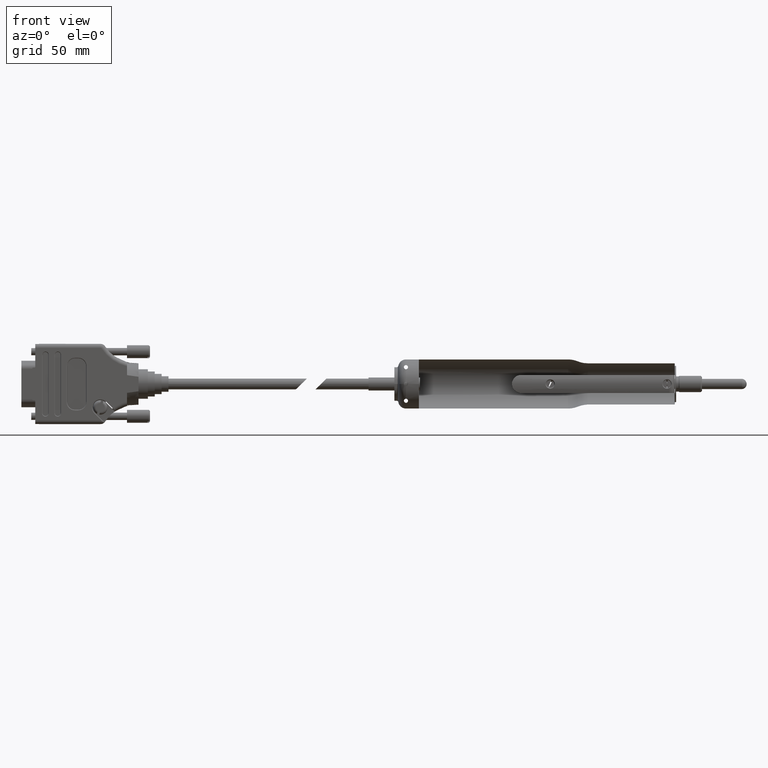
[diagram: clean part render]
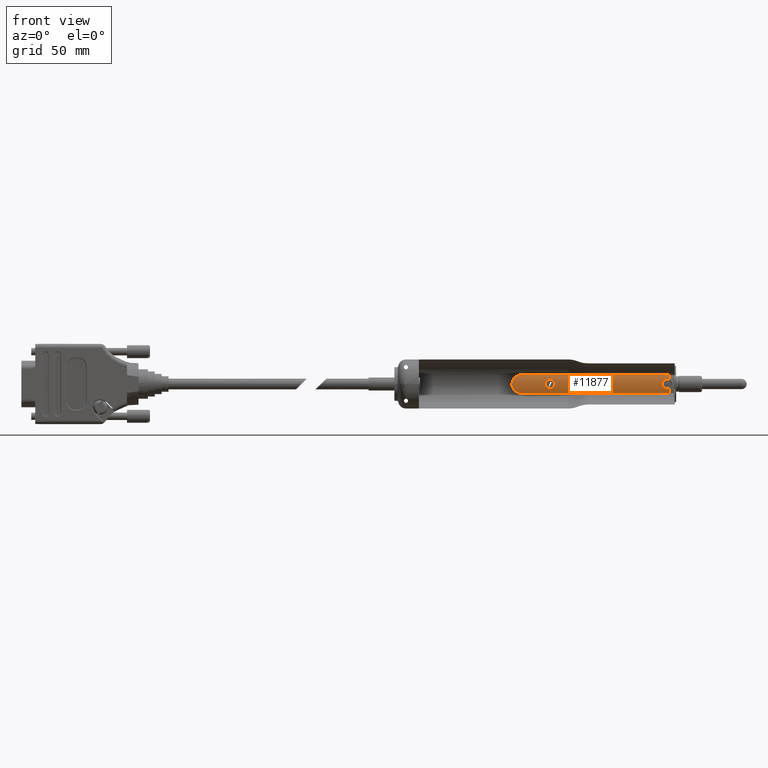
[diagram: same view with one face highlighted and labeled with its STEP entity id]
A machine part, front view. The second image highlights one B-rep face of the part: STEP entity #11877.
In plain terms, the highlighted cylindrical surface (edge-blend (fillet) strip) has radius 9.5 mm, axis along (-1, -0, 0).
Its self-contained STEP definition (entity closure, byte-faithful):
#390 = FACE_BOUND ( 'NONE', #24473, .T. ) ;
#391 = FACE_OUTER_BOUND ( 'NONE', #24388, .T. ) ;
#399 = CYLINDRICAL_SURFACE ( 'NONE', #20794, 9.499999999999998200 ) ;
#542 = DIRECTION ( 'NONE',  ( -1.000000000000000000, -2.479409886018499400E-017, 8.326672684688674100E-017 ) ) ;
#613 = CARTESIAN_POINT ( 'NONE',  ( 96.00000000000000000, -9.327915093953198100, 1.799999999999999600 ) ) ;
#614 = CARTESIAN_POINT ( 'NONE',  ( 98.90000000000000600, -8.831760866327844200, 3.499999999999998200 ) ) ;
#620 = CARTESIAN_POINT ( 'NONE',  ( 94.25777628001557700, -9.489195347442994000, 0.4675899155826124800 ) ) ;
#623 = CARTESIAN_POINT ( 'NONE',  ( 95.76336212461757200, -9.330196855826731200, -1.788290299225192800 ) ) ;
#648 = CARTESIAN_POINT ( 'NONE',  ( 94.42771935973453900, -9.459075492453406400, -0.9077220823629803500 ) ) ;
#652 = CARTESIAN_POINT ( 'NONE',  ( 94.55991262463639700, -9.436969996646897800, -1.105475336838141800 ) ) ;
#653 = CARTESIAN_POINT ( 'NONE',  ( 94.90132107680119600, -9.391895889595762300, -1.430613095032818000 ) ) ;
#654 = CARTESIAN_POINT ( 'NONE',  ( 94.81073153834213900, -9.403057866520180500, -1.356326792615170300 ) ) ;
#656 = CARTESIAN_POINT ( 'NONE',  ( 94.25776076049869800, -9.489198430881570400, -0.4673674577579803300 ) ) ;
#659 = CARTESIAN_POINT ( 'NONE',  ( 94.29180476338467500, -9.482928959790852400, -0.5797201749511992100 ) ) ;
#664 = CARTESIAN_POINT ( 'NONE',  ( 95.09620695102792400, -9.371096782132529100, -1.561059681303210500 ) ) ;
#665 = CARTESIAN_POINT ( 'NONE',  ( 95.20172241097610300, -9.361382930355141200, -1.617592974727468000 ) ) ;
#667 = CARTESIAN_POINT ( 'NONE',  ( 94.29261095051603500, -9.482785226953042800, 0.5818824647597480300 ) ) ;
#671 = CARTESIAN_POINT ( 'NONE',  ( 96.00000000000000000, -9.327915093953199800, -1.799999999999999600 ) ) ;
#672 = CARTESIAN_POINT ( 'NONE',  ( 95.88246081660692300, -9.327915093953196300, -1.800000000000000700 ) ) ;
#682 = CARTESIAN_POINT ( 'NONE',  ( 95.20133812524402100, -9.361415360610358500, 1.617406421301167200 ) ) ;
#683 = CARTESIAN_POINT ( 'NONE',  ( 95.09807643121921200, -9.370912744068800000, 1.562168944255248900 ) ) ;
#685 = CARTESIAN_POINT ( 'NONE',  ( 94.81015010270812100, -9.403138293407225800, 1.355717955792291200 ) ) ;
#689 = CARTESIAN_POINT ( 'NONE',  ( 94.90243246736160600, -9.391762029658268700, 1.431496924766462200 ) ) ;
#690 = CARTESIAN_POINT ( 'NONE',  ( 94.20005158253825100, -9.499990226467330600, 0.1186942081878848700 ) ) ;
#691 = CARTESIAN_POINT ( 'NONE',  ( 95.76412334852277300, -9.330185880016614400, 1.788344476754133900 ) ) ;
#693 = CARTESIAN_POINT ( 'NONE',  ( 95.88115236608044300, -9.327915093953201600, 1.799999999999999800 ) ) ;
#705 = CARTESIAN_POINT ( 'NONE',  ( 94.21157674744233600, -9.497786193726744500, 0.2356397448267032200 ) ) ;
#706 = CARTESIAN_POINT ( 'NONE',  ( 94.21176089759440200, -9.497751753986808200, -0.2367083033121867900 ) ) ;
#707 = CARTESIAN_POINT ( 'NONE',  ( 94.56170468957928700, -9.436724079223790100, 1.107322182110598300 ) ) ;
#708 = CARTESIAN_POINT ( 'NONE',  ( 94.19994875967377400, -9.500009708692497100, -0.1171245182717037800 ) ) ;
#709 = CARTESIAN_POINT ( 'NONE',  ( 94.42757803402705000, -9.459104821068381200, 0.9069440100116930000 ) ) ;
#723 = CARTESIAN_POINT ( 'NONE',  ( 95.41884752640328300, -9.345371847136448200, 1.707666865722753400 ) ) ;
#737 = CARTESIAN_POINT ( 'NONE',  ( 95.53147167475489700, -9.338955759396791100, -1.741970403540614500 ) ) ;
#744 = CARTESIAN_POINT ( 'NONE',  ( 95.53357579495437300, -9.338858725775956800, 1.742487366725135700 ) ) ;
#754 = CARTESIAN_POINT ( 'NONE',  ( 95.41917114025409300, -9.345352075974481900, -1.707773982912178700 ) ) ;
#1795 = B_SPLINE_CURVE_WITH_KNOTS ( 'NONE', 3,
 ( #671, #672, #623, #737, #754, #665, #664, #653, #654, #652, #648, #659, #656, #706, #708, #690, #705, #620, #667, #709, #707, #685, #689, #683, #682, #723, #744, #691, #693, #613 ),
 .UNSPECIFIED., .F., .F.,
 ( 4, 2, 2, 2, 2, 2, 2, 2, 2, 2, 2, 2, 2, 2, 4 ),
 ( 0.0009395609290142590600, 0.001292166057146616800, 0.001644771185278974400, 0.001997376313411332000, 0.002349981441543689800, 0.003055191697808404900, 0.003407796825940770500, 0.003760401954073135600, 0.004113007082205501200, 0.004465612210337865900, 0.005170822466602597100, 0.005523427594734963600, 0.005876032722867328300, 0.006228637850999694700, 0.006581242979132059500 ),
 .UNSPECIFIED. ) ;
#2343 = AXIS2_PLACEMENT_3D ( 'NONE', #25992, #25993, #25994 ) ;
#2344 = AXIS2_PLACEMENT_3D ( 'NONE', #26006, #26007, #26008 ) ;
#3759 = CIRCLE ( 'NONE', #2344, 9.499999999999998200 ) ;
#3761 = CIRCLE ( 'NONE', #2343, 9.499999999999998200 ) ;
#3823 = LINE ( 'NONE', #26183, #3830 ) ;
#3830 = VECTOR ( 'NONE', #26185, 1000.000000000000000 ) ;
#5535 = ORIENTED_EDGE ( 'NONE', *, *, #19786, .T. ) ;
#5551 = ORIENTED_EDGE ( 'NONE', *, *, #19789, .T. ) ;
#5606 = ORIENTED_EDGE ( 'NONE', *, *, #19784, .T. ) ;
#5623 = ORIENTED_EDGE ( 'NONE', *, *, #19827, .F. ) ;
#5667 = ORIENTED_EDGE ( 'NONE', *, *, #19787, .T. ) ;
#5708 = ORIENTED_EDGE ( 'NONE', *, *, #19788, .T. ) ;
#5733 = ORIENTED_EDGE ( 'NONE', *, *, #19816, .T. ) ;
#5781 = ORIENTED_EDGE ( 'NONE', *, *, #9779, .T. ) ;
#5809 = ORIENTED_EDGE ( 'NONE', *, *, #9776, .T. ) ;
#5812 = ORIENTED_EDGE ( 'NONE', *, *, #19785, .T. ) ;
#9776 = EDGE_CURVE ( 'NONE', #27043, #27029, #21256, .T. ) ;
#9779 = EDGE_CURVE ( 'NONE', #26694, #26693, #1795, .T. ) ;
#11877 = ADVANCED_FACE ( 'NONE', ( #390, #391 ), #399, .T. ) ;
#18878 = CARTESIAN_POINT ( 'NONE',  ( 96.00000000000000000, -9.327915093953198100, 1.799999999999999600 ) ) ;
#18879 = CARTESIAN_POINT ( 'NONE',  ( 96.00000000000000000, -9.327915093953199800, -1.799999999999999600 ) ) ;
#19214 = CARTESIAN_POINT ( 'NONE',  ( 39.50000000000000700, -8.831760866327846000, 3.500000000000003100 ) ) ;
#19216 = CARTESIAN_POINT ( 'NONE',  ( 50.79999999999999700, -9.327915093953201600, -1.799999999999995600 ) ) ;
#19217 = CARTESIAN_POINT ( 'NONE',  ( 50.79999999999999700, -9.327915093953201600, 1.800000000000003200 ) ) ;
#19222 = CARTESIAN_POINT ( 'NONE',  ( 96.89999999999732000, -9.371232576348083000, 1.558845726814393600 ) ) ;
#19223 = CARTESIAN_POINT ( 'NONE',  ( 96.90000000000000600, -8.831760866327844200, -3.500000000000002200 ) ) ;
#19225 = CARTESIAN_POINT ( 'NONE',  ( 39.50000000000000700, -8.831760866327846000, -3.499999999999997300 ) ) ;
#19228 = CARTESIAN_POINT ( 'NONE',  ( 96.90000000000000600, -8.831760866327844200, 3.499999999999998200 ) ) ;
#19230 = CARTESIAN_POINT ( 'NONE',  ( 96.90000000000000600, -9.371232576347678000, -1.558845726811990000 ) ) ;
#19784 = EDGE_CURVE ( 'NONE', #27029, #27040, #20288, .T. ) ;
#19785 = EDGE_CURVE ( 'NONE', #27037, #27043, #3761, .T. ) ;
#19786 = EDGE_CURVE ( 'NONE', #26693, #27037, #20289, .T. ) ;
#19787 = EDGE_CURVE ( 'NONE', #27045, #26694, #20290, .T. ) ;
#19788 = EDGE_CURVE ( 'NONE', #27038, #27045, #3759, .T. ) ;
#19789 = EDGE_CURVE ( 'NONE', #27032, #27031, #20291, .T. ) ;
#19816 = EDGE_CURVE ( 'NONE', #27031, #27032, #20297, .T. ) ;
#19827 = EDGE_CURVE ( 'NONE', #27038, #27040, #3823, .T. ) ;
#20288 = B_SPLINE_CURVE_WITH_KNOTS ( 'NONE', 3,
 ( #25961, #25936, #25935, #25963, #25964, #25965, #25966, #25967, #25968, #25969, #25970, #25971, #25972, #25973, #25974, #25975, #25976, #25977, #25978, #25979, #25980, #25981, #25982, #25983, #25984, #25985, #25986, #25987, #25988, #25989 ),
 .UNSPECIFIED., .F., .F.,
 ( 4, 2, 2, 2, 2, 2, 2, 2, 2, 2, 2, 2, 2, 2, 4 ),
 ( 0.0000000000000000000, 0.0006895794441545122700, 0.001379158888309024500, 0.002068738332463537300, 0.002758317776618049100, 0.004137476664927057200, 0.004827056109081565500, 0.005516635553236073000, 0.006206214997390579700, 0.006895794441545087200, 0.007585373885699594700, 0.008274953329854102200, 0.009654112218163118900, 0.01034369166231762600, 0.01103327110647213600 ),
 .UNSPECIFIED. ) ;
#20289 = B_SPLINE_CURVE_WITH_KNOTS ( 'NONE', 3,
 ( #25990, #25991, #25996, #25997, #25998, #25999 ),
 .UNSPECIFIED., .F., .F.,
 ( 4, 2, 4 ),
 ( 0.006581242979132060300, 0.007049676816807058100, 0.007518110654482055900 ),
 .UNSPECIFIED. ) ;
#20290 = B_SPLINE_CURVE_WITH_KNOTS ( 'NONE', 3,
 ( #25962, #25995, #26000, #26001, #26002, #26003 ),
 .UNSPECIFIED., .F., .F.,
 ( 4, 2, 4 ),
 ( 0.0000000000000000000, 0.0004697804645071295300, 0.0009395609290142590600 ),
 .UNSPECIFIED. ) ;
#20291 = B_SPLINE_CURVE_WITH_KNOTS ( 'NONE', 3,
 ( #26009, #26004, #26005, #26010, #26011, #26012, #26013, #26014, #26015, #26016, #26017, #26018, #26019, #26020, #26021, #26022, #26023, #26024, #26025, #26026, #26027, #26028, #26029, #26030, #26031, #26032 ),
 .UNSPECIFIED., .F., .F.,
 ( 4, 2, 2, 2, 2, 2, 2, 2, 2, 2, 2, 2, 4 ),
 ( 0.005640370647349828700, 0.006345236228277349000, 0.006697669018741098800, 0.007050101809204849400, 0.007402534599668600000, 0.007754967390132349800, 0.008459832971059851000, 0.008812265761523600800, 0.009164698551987352300, 0.009517131342451102100, 0.009869564132914851800, 0.01057442971384235300, 0.01127929529476985300 ),
 .UNSPECIFIED. ) ;
#20297 = B_SPLINE_CURVE_WITH_KNOTS ( 'NONE', 3,
 ( #26123, #26124, #26128, #26129, #26130, #26131, #26132, #26133, #26134, #26135, #26136, #26137, #26138, #26139, #26140, #26141, #26142, #26143, #26144, #26145, #26146, #26147, #26148, #26149, #26150, #26151, #26152, #26153 ),
 .UNSPECIFIED., .F., .F.,
 ( 4, 2, 2, 2, 2, 2, 2, 2, 2, 2, 2, 2, 2, 4 ),
 ( 0.0000000000000000000, 0.0003525231654593664100, 0.0007050463309187328200, 0.001057569496378099200, 0.001410092661837465600, 0.002115138992756184000, 0.002820185323674902600, 0.003172708489134262000, 0.003525231654593621700, 0.004230277985512348100, 0.004582801150971718700, 0.004935324316431088400, 0.005287847481890459000, 0.005640370647349828700 ),
 .UNSPECIFIED. ) ;
#20794 = AXIS2_PLACEMENT_3D ( 'NONE', #27727, #27818, #27740 ) ;
#21256 = LINE ( 'NONE', #614, #21260 ) ;
#21260 = VECTOR ( 'NONE', #542, 1000.000000000000000 ) ;
#24388 = EDGE_LOOP ( 'NONE', ( #5708, #5667, #5781, #5535, #5812, #5809, #5606, #5623 ) ) ;
#24473 = EDGE_LOOP ( 'NONE', ( #5733, #5551 ) ) ;
#25935 = CARTESIAN_POINT ( 'NONE',  ( 39.03765339804239400, -8.841011713849013600, 3.476901595183036900 ) ) ;
#25936 = CARTESIAN_POINT ( 'NONE',  ( 39.26665098350100900, -8.831760866327844200, 3.500000000000002700 ) ) ;
#25961 = CARTESIAN_POINT ( 'NONE',  ( 39.50000000000000700, -8.831760866327846000, 3.500000000000003100 ) ) ;
#25962 = CARTESIAN_POINT ( 'NONE',  ( 96.90000000000000600, -9.371232576347678000, -1.558845726811990000 ) ) ;
#25963 = CARTESIAN_POINT ( 'NONE',  ( 38.58785036768006900, -8.875907880088384200, 3.386826262326825700 ) ) ;
#25964 = CARTESIAN_POINT ( 'NONE',  ( 38.36467319750610700, -8.901985774902929200, 3.318646915421718200 ) ) ;
#25965 = CARTESIAN_POINT ( 'NONE',  ( 37.94215610882369600, -8.965671273105464000, 3.142531894575413300 ) ) ;
#25966 = CARTESIAN_POINT ( 'NONE',  ( 37.74208600018380400, -9.003114732358900700, 3.035071310054879400 ) ) ;
#25967 = CARTESIAN_POINT ( 'NONE',  ( 37.36341117565851300, -9.084647767391373900, 2.781529738033926300 ) ) ;
#25968 = CARTESIAN_POINT ( 'NONE',  ( 37.18591006525179700, -9.128598628870483000, 2.635539410933354500 ) ) ;
#25969 = CARTESIAN_POINT ( 'NONE',  ( 36.70629524985412900, -9.257968947595376400, 2.156277955124482800 ) ) ;
#25970 = CARTESIAN_POINT ( 'NONE',  ( 36.44618060864505800, -9.343373109102044400, 1.769623293722354800 ) ) ;
#25971 = CARTESIAN_POINT ( 'NONE',  ( 36.18281415326044500, -9.433818102286483800, 1.139351976943827600 ) ) ;
#25972 = CARTESIAN_POINT ( 'NONE',  ( 36.11437666699118400, -9.458363278201790800, 0.9171139687531848500 ) ) ;
#25973 = CARTESIAN_POINT ( 'NONE',  ( 36.02310621081198900, -9.491416173085891500, 0.4634144617961528100 ) ) ;
#25974 = CARTESIAN_POINT ( 'NONE',  ( 36.00000305828079000, -9.499998873264972900, 0.2333751346289033600 ) ) ;
#25975 = CARTESIAN_POINT ( 'NONE',  ( 35.99999694232038600, -9.500001126513536700, -0.2332833936232332200 ) ) ;
#25976 = CARTESIAN_POINT ( 'NONE',  ( 36.02308985681156600, -9.491424555169135900, -0.4623276769402969700 ) ) ;
#25977 = CARTESIAN_POINT ( 'NONE',  ( 36.11321023890708700, -9.458783263639389800, -0.9123081380914936900 ) ) ;
#25978 = CARTESIAN_POINT ( 'NONE',  ( 36.18144282025920000, -9.434297258983143300, -1.135632417857517700 ) ) ;
#25979 = CARTESIAN_POINT ( 'NONE',  ( 36.35778747986017800, -9.373720848060870000, -1.558519560985598200 ) ) ;
#25980 = CARTESIAN_POINT ( 'NONE',  ( 36.46539999403482600, -9.337787056252418300, -1.758745154209962800 ) ) ;
#25981 = CARTESIAN_POINT ( 'NONE',  ( 36.71921137402742400, -9.258415377052914500, -2.137567854203093800 ) ) ;
#25982 = CARTESIAN_POINT ( 'NONE',  ( 36.86540720182782100, -9.215063194638020100, -2.315170589696931500 ) ) ;
#25983 = CARTESIAN_POINT ( 'NONE',  ( 37.34493429322489500, -9.085678294793643400, -2.794649903976439200 ) ) ;
#25984 = CARTESIAN_POINT ( 'NONE',  ( 37.73125765911629500, -8.997566660265235300, -3.054269203055509900 ) ) ;
#25985 = CARTESIAN_POINT ( 'NONE',  ( 38.36101062494493200, -8.902484814974904700, -3.317296438638501800 ) ) ;
#25986 = CARTESIAN_POINT ( 'NONE',  ( 38.58306257357259000, -8.876353624351613900, -3.385666732221646000 ) ) ;
#25987 = CARTESIAN_POINT ( 'NONE',  ( 39.03663835272038100, -8.841017104198272100, -3.476896525565008800 ) ) ;
#25988 = CARTESIAN_POINT ( 'NONE',  ( 39.26664983246975300, -8.831760866327842400, -3.499999999999998200 ) ) ;
#25989 = CARTESIAN_POINT ( 'NONE',  ( 39.50000000000000700, -8.831760866327846000, -3.499999999999997300 ) ) ;
#25990 = CARTESIAN_POINT ( 'NONE',  ( 96.00000000000000000, -9.327915093953198100, 1.799999999999999600 ) ) ;
#25991 = CARTESIAN_POINT ( 'NONE',  ( 96.15788838225478200, -9.327915093953199800, 1.799999999999999600 ) ) ;
#25992 = CARTESIAN_POINT ( 'NONE',  ( 96.90000000000000600, 1.943508672927152100E-015, -2.968481539827414000E-015 ) ) ;
#25993 = DIRECTION ( 'NONE',  ( -1.000000000000000000, -2.479409886018499400E-017, 8.326672684688674100E-017 ) ) ;
#25994 = DIRECTION ( 'NONE',  ( 0.0000000000000000000, -1.062751620959548200E-014, 1.000000000000000000 ) ) ;
#25995 = CARTESIAN_POINT ( 'NONE',  ( 96.76293324340058200, -9.358068877769667900, -1.637981255631595400 ) ) ;
#25996 = CARTESIAN_POINT ( 'NONE',  ( 96.31378887993699300, -9.331970992894286000, 1.779327502942581200 ) ) ;
#25997 = CARTESIAN_POINT ( 'NONE',  ( 96.61603009931845100, -9.347016220929251800, 1.698521928216908600 ) ) ;
#25998 = CARTESIAN_POINT ( 'NONE',  ( 96.76331403292456900, -9.358105448260131400, 1.637761406697436200 ) ) ;
#25999 = CARTESIAN_POINT ( 'NONE',  ( 96.89999999999732000, -9.371232576348083000, 1.558845726814393600 ) ) ;
#26000 = CARTESIAN_POINT ( 'NONE',  ( 96.61847529778758300, -9.347167490126169700, -1.697697644581642100 ) ) ;
#26001 = CARTESIAN_POINT ( 'NONE',  ( 96.31496836313628800, -9.332000507087155200, -1.779180686893462300 ) ) ;
#26002 = CARTESIAN_POINT ( 'NONE',  ( 96.15659900485476900, -9.327915093953199800, -1.799999999999998500 ) ) ;
#26003 = CARTESIAN_POINT ( 'NONE',  ( 96.00000000000000000, -9.327915093953199800, -1.799999999999999600 ) ) ;
#26004 = CARTESIAN_POINT ( 'NONE',  ( 51.03518078670988700, -9.327915093953203400, 1.800000000000003200 ) ) ;
#26005 = CARTESIAN_POINT ( 'NONE',  ( 51.27251335384084300, -9.337375335444569700, 1.752638289454061700 ) ) ;
#26006 = CARTESIAN_POINT ( 'NONE',  ( 96.90000000000000600, 1.943508672927152100E-015, -2.968481539827414000E-015 ) ) ;
#26007 = DIRECTION ( 'NONE',  ( -1.000000000000000000, -2.479409886018499400E-017, 8.326672684688674100E-017 ) ) ;
#26008 = DIRECTION ( 'NONE',  ( 0.0000000000000000000, 3.062482680602242000E-017, 1.000000000000000000 ) ) ;
#26009 = CARTESIAN_POINT ( 'NONE',  ( 50.79999999999999700, -9.327915093953201600, 1.800000000000003200 ) ) ;
#26010 = CARTESIAN_POINT ( 'NONE',  ( 51.59751732348001200, -9.361322620367449300, 1.617936519012383800 ) ) ;
#26011 = CARTESIAN_POINT ( 'NONE',  ( 51.70256371884371300, -9.370972459859455500, 1.561819382444528800 ) ) ;
#26012 = CARTESIAN_POINT ( 'NONE',  ( 51.89858096135458300, -9.391878603640602600, 1.430741388686874300 ) ) ;
#26013 = CARTESIAN_POINT ( 'NONE',  ( 51.98900871786680300, -9.403030241182483100, 1.356473747373923000 ) ) ;
#26014 = CARTESIAN_POINT ( 'NONE',  ( 52.15501831595508300, -9.425460764440263300, 1.190667091131767600 ) ) ;
#26015 = CARTESIAN_POINT ( 'NONE',  ( 52.23092165556599300, -9.436810538958001300, 1.098276578352096700 ) ) ;
#26016 = CARTESIAN_POINT ( 'NONE',  ( 52.36130927172072800, -9.457459648646786100, 0.9033612704579615500 ) ) ;
#26017 = CARTESIAN_POINT ( 'NONE',  ( 52.41670635365427700, -9.466876124798636400, 0.8001462392977051200 ) ) ;
#26018 = CARTESIAN_POINT ( 'NONE',  ( 52.55284289167347800, -9.490757331016077100, 0.4726896973098559400 ) ) ;
#26019 = CARTESIAN_POINT ( 'NONE',  ( 52.59987328702987200, -9.499975991229977300, 0.2386840410481780300 ) ) ;
#26020 = CARTESIAN_POINT ( 'NONE',  ( 52.60006297447657200, -9.500011932004451200, -0.1179057594957073200 ) ) ;
#26021 = CARTESIAN_POINT ( 'NONE',  ( 52.58846664759565200, -9.497794894289707900, -0.2349565606509747800 ) ) ;
#26022 = CARTESIAN_POINT ( 'NONE',  ( 52.54271987955304000, -9.489286984964836700, -0.4655587571569998500 ) ) ;
#26023 = CARTESIAN_POINT ( 'NONE',  ( 52.50796169394715200, -9.482887992656175800, -0.5802818083106420200 ) ) ;
#26024 = CARTESIAN_POINT ( 'NONE',  ( 52.41782789262953900, -9.467069167564053700, -0.7978051359053370800 ) ) ;
#26025 = CARTESIAN_POINT ( 'NONE',  ( 52.36262598573493700, -9.457675974712072900, -0.9011479433571005800 ) ) ;
#26026 = CARTESIAN_POINT ( 'NONE',  ( 52.23189814203014700, -9.436957516090732400, -1.097057563649856100 ) ) ;
#26027 = CARTESIAN_POINT ( 'NONE',  ( 52.15628529566818400, -9.425645678908026100, -1.189194832239087300 ) ) ;
#26028 = CARTESIAN_POINT ( 'NONE',  ( 51.90819983663782000, -9.392084620690518200, -1.437591642698026600 ) ) ;
#26029 = CARTESIAN_POINT ( 'NONE',  ( 51.70792237180703000, -9.369511080683741600, -1.571823099332664300 ) ) ;
#26030 = CARTESIAN_POINT ( 'NONE',  ( 51.27506603887783900, -9.337510514003334100, -1.751931262215615800 ) ) ;
#26031 = CARTESIAN_POINT ( 'NONE',  ( 51.03838124241208600, -9.327915093953203400, -1.799999999999995800 ) ) ;
#26032 = CARTESIAN_POINT ( 'NONE',  ( 50.79999999999999700, -9.327915093953201600, -1.799999999999995600 ) ) ;
#26123 = CARTESIAN_POINT ( 'NONE',  ( 50.79999999999999700, -9.327915093953201600, -1.799999999999995600 ) ) ;
#26124 = CARTESIAN_POINT ( 'NONE',  ( 50.68077881452139600, -9.327915093953199800, -1.799999999999995600 ) ) ;
#26128 = CARTESIAN_POINT ( 'NONE',  ( 50.56360534728371200, -9.330199678608094500, -1.788272754264153000 ) ) ;
#26129 = CARTESIAN_POINT ( 'NONE',  ( 50.33316902206748700, -9.338879738642267700, -1.742375020917980500 ) ) ;
#26130 = CARTESIAN_POINT ( 'NONE',  ( 50.21869280338942300, -9.345379421221846200, -1.707628114389846200 ) ) ;
#26131 = CARTESIAN_POINT ( 'NONE',  ( 50.00082908064340600, -9.361456757797416400, -1.617169649585532800 ) ) ;
#26132 = CARTESIAN_POINT ( 'NONE',  ( 49.89754266522793800, -9.370965029245807500, -1.561854593258839900 ) ) ;
#26133 = CARTESIAN_POINT ( 'NONE',  ( 49.70207155256152000, -9.391805109453589000, -1.431213518617323600 ) ) ;
#26134 = CARTESIAN_POINT ( 'NONE',  ( 49.60973875653185400, -9.403190430023844500, -1.355359000039821000 ) ) ;
#26135 = CARTESIAN_POINT ( 'NONE',  ( 49.36131863620469300, -9.436783234179476000, -1.106831206748870400 ) ) ;
#26136 = CARTESIAN_POINT ( 'NONE',  ( 49.22729864509005900, -9.459152507972715900, -0.9063995834717735200 ) ) ;
#26137 = CARTESIAN_POINT ( 'NONE',  ( 49.04761103927728500, -9.490681940040655500, -0.4733737286653438800 ) ) ;
#26138 = CARTESIAN_POINT ( 'NONE',  ( 49.00009075185236900, -9.499982804913413400, -0.2360980427037677500 ) ) ;
#26139 = CARTESIAN_POINT ( 'NONE',  ( 48.99995482412239100, -9.500008559639351100, 0.1170096647022847700 ) ) ;
#26140 = CARTESIAN_POINT ( 'NONE',  ( 49.01173223120921600, -9.497757038927412400, 0.2365976676637681400 ) ) ;
#26141 = CARTESIAN_POINT ( 'NONE',  ( 49.05782814452639000, -9.489185946729227400, 0.4676722091760571700 ) ) ;
#26142 = CARTESIAN_POINT ( 'NONE',  ( 49.09191936439924600, -9.482908656928550800, 0.5800151321052009500 ) ) ;
#26143 = CARTESIAN_POINT ( 'NONE',  ( 49.22761341073500300, -9.459094467117086700, 0.9074295888060932600 ) ) ;
#26144 = CARTESIAN_POINT ( 'NONE',  ( 49.35988418392971500, -9.436970609786467200, 1.105495596229557200 ) ) ;
#26145 = CARTESIAN_POINT ( 'NONE',  ( 49.61102360747276000, -9.403019995913894000, 1.356594507307757200 ) ) ;
#26146 = CARTESIAN_POINT ( 'NONE',  ( 49.70164600166149400, -9.391858718256278500, 1.430853488681617500 ) ) ;
#26147 = CARTESIAN_POINT ( 'NONE',  ( 49.89636877759537700, -9.371082011386132400, 1.561145036706733200 ) ) ;
#26148 = CARTESIAN_POINT ( 'NONE',  ( 50.00176260272154800, -9.361378384583401800, 1.617620134659413000 ) ) ;
#26149 = CARTESIAN_POINT ( 'NONE',  ( 50.21940468541262000, -9.345336443181288600, 1.707860334789878900 ) ) ;
#26150 = CARTESIAN_POINT ( 'NONE',  ( 50.33162119313536900, -9.338952022588308900, 1.741989746510951300 ) ) ;
#26151 = CARTESIAN_POINT ( 'NONE',  ( 50.56290389802551700, -9.330212255627296600, 1.788209278048217900 ) ) ;
#26152 = CARTESIAN_POINT ( 'NONE',  ( 50.68237945272190400, -9.327915093953199800, 1.800000000000003200 ) ) ;
#26153 = CARTESIAN_POINT ( 'NONE',  ( 50.79999999999999700, -9.327915093953201600, 1.800000000000003200 ) ) ;
#26183 = CARTESIAN_POINT ( 'NONE',  ( 98.90000000000000600, -8.831760866327844200, -3.500000000000002200 ) ) ;
#26185 = DIRECTION ( 'NONE',  ( -1.000000000000000000, -2.479409886018499400E-017, 8.326672684688674100E-017 ) ) ;
#26693 = VERTEX_POINT ( 'NONE', #18878 ) ;
#26694 = VERTEX_POINT ( 'NONE', #18879 ) ;
#27029 = VERTEX_POINT ( 'NONE', #19214 ) ;
#27031 = VERTEX_POINT ( 'NONE', #19216 ) ;
#27032 = VERTEX_POINT ( 'NONE', #19217 ) ;
#27037 = VERTEX_POINT ( 'NONE', #19222 ) ;
#27038 = VERTEX_POINT ( 'NONE', #19223 ) ;
#27040 = VERTEX_POINT ( 'NONE', #19225 ) ;
#27043 = VERTEX_POINT ( 'NONE', #19228 ) ;
#27045 = VERTEX_POINT ( 'NONE', #19230 ) ;
#27727 = CARTESIAN_POINT ( 'NONE',  ( 98.90000000000000600, 1.993096870647522000E-015, -3.135014993521187900E-015 ) ) ;
#27740 = DIRECTION ( 'NONE',  ( 0.0000000000000000000, -3.062482680602242000E-017, -1.000000000000000000 ) ) ;
#27818 = DIRECTION ( 'NONE',  ( -1.000000000000000000, -2.479409886018499400E-017, 8.326672684688674100E-017 ) ) ;